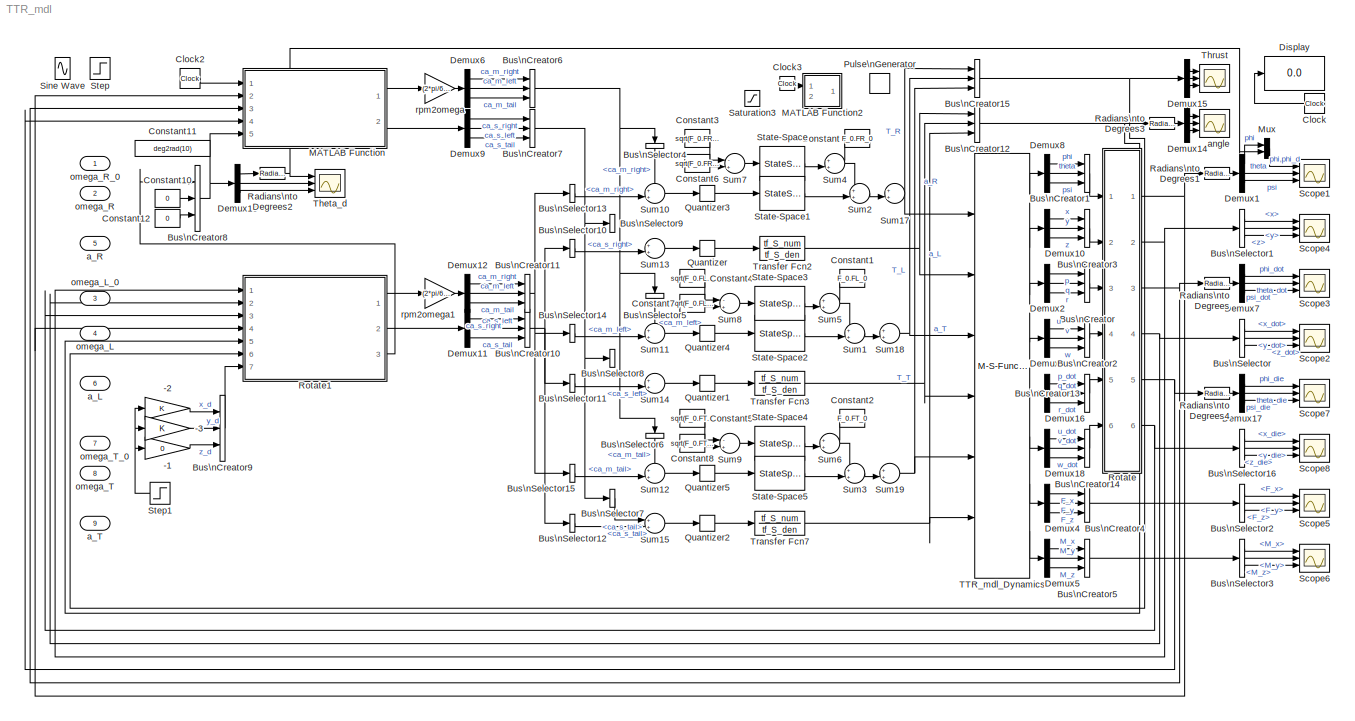
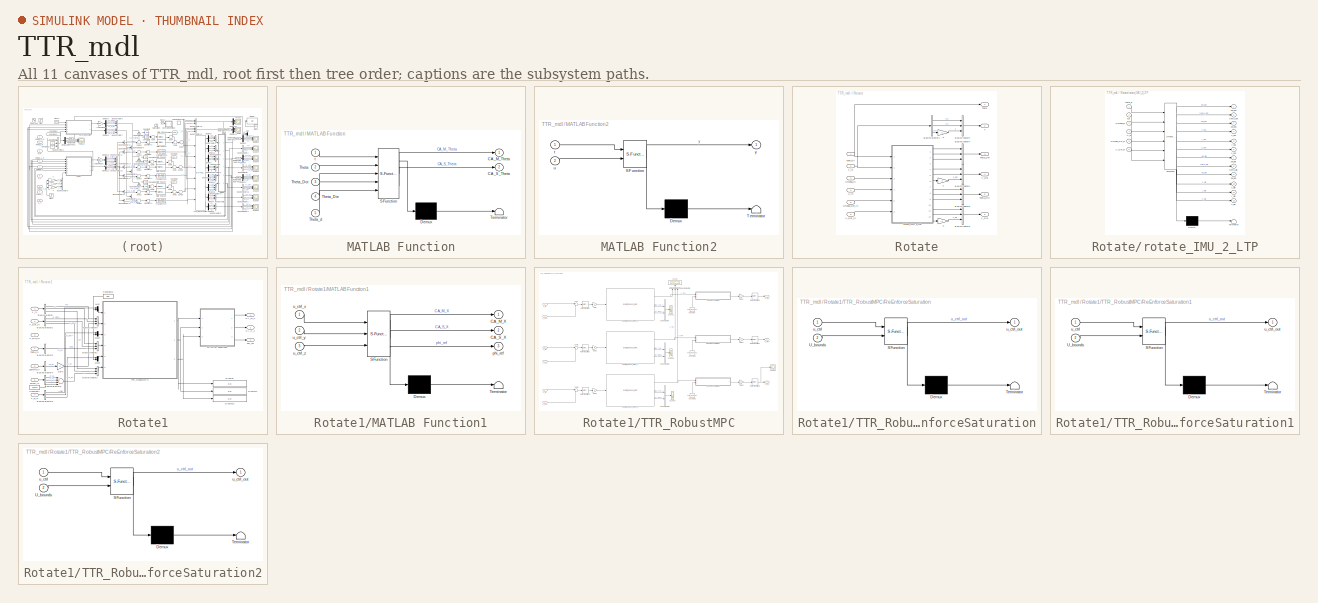
[diagram: thumbnail index - all 11 canvases of the model, root first then tree order]
MODEL TTR_mdl
KIND model
CONFIG InitFcn = TTR_mdl_Initialization;
WORKSPACE source: external: MAT-File  (data not in archive)
BLOCK [Gain] -1
  Gain = 0
  OutDataTypeStr = Inherit: Inherit via internal rule
  ParamDataTypeStr = Inherit: Inherit via internal rule
  SID = 1244
  SaturateOnIntegerOverflow = off
BLOCK [Gain] -2
  OutDataTypeStr = Inherit: Inherit via internal rule
  ParamDataTypeStr = Inherit: Inherit via internal rule
  SID = 1299
  SaturateOnIntegerOverflow = off
BLOCK [Gain] -3
  OutDataTypeStr = Inherit: Inherit via internal rule
  ParamDataTypeStr = Inherit: Inherit via internal rule
  SID = 1300
  SaturateOnIntegerOverflow = off
BLOCK [BusCreator] Bus\nCreator
  DisplayOption = bar
  Inputs = 3
  Ports = [3, 1]
  SID = 1094
BLOCK [BusCreator] Bus\nCreator1
  DisplayOption = bar
  Inputs = 3
  Ports = [3, 1]
  SID = 1096
BLOCK [BusCreator] Bus\nCreator10
  DisplayOption = bar
  Inputs = 3
  Ports = [3, 1]
  SID = 1151
BLOCK [BusCreator] Bus\nCreator11
  DisplayOption = bar
  Inputs = 3
  Ports = [3, 1]
  SID = 1153
BLOCK [BusCreator] Bus\nCreator12
  DisplayOption = bar
  Inputs = 3
  Ports = [3, 1]
  SID = 1208
BLOCK [BusCreator] Bus\nCreator13
  DisplayOption = bar
  Inputs = 3
  Ports = [3, 1]
  SID = 1226
BLOCK [BusCreator] Bus\nCreator14
  DisplayOption = bar
  Inputs = 3
  Ports = [3, 1]
  SID = 1231
BLOCK [BusCreator] Bus\nCreator15
  DisplayOption = bar
  Inputs = 3
  Ports = [3, 1]
  SID = 1410
BLOCK [BusCreator] Bus\nCreator2
  DisplayOption = bar
  Inputs = 3
  Ports = [3, 1]
  SID = 1098
BLOCK [BusCreator] Bus\nCreator3
  DisplayOption = bar
  Inputs = 3
  Ports = [3, 1]
  SID = 1101
BLOCK [BusCreator] Bus\nCreator4
  DisplayOption = bar
  Inputs = 3
  Ports = [3, 1]
  SID = 1105
BLOCK [BusCreator] Bus\nCreator5
  DisplayOption = bar
  Inputs = 3
  Ports = [3, 1]
  SID = 1108
BLOCK [BusCreator] Bus\nCreator6
  DisplayOption = bar
  Inputs = 3
  Ports = [3, 1]
  SID = 1112
BLOCK [BusCreator] Bus\nCreator7
  DisplayOption = bar
  Inputs = 3
  Ports = [3, 1]
  SID = 1122
BLOCK [BusCreator] Bus\nCreator8
  DisplayOption = bar
  Inputs = 3
  Ports = [3, 1]
  SID = 1139
BLOCK [BusCreator] Bus\nCreator9
  DisplayOption = bar
  Inputs = 3
  Ports = [3, 1]
  SID = 1147
BLOCK [BusSelector] Bus\nSelector
  OutputSignals = x_dot,y_dot,z_dot
  Ports = [1, 3]
  SID = 1103
BLOCK [BusSelector] Bus\nSelector1
  OutputSignals = x,y,z
  Ports = [1, 3]
  SID = 1104
BLOCK [BusSelector] Bus\nSelector10
  OutputSignals = ca_s_right
  Ports = [1, 1]
  SID = 1155
BLOCK [BusSelector] Bus\nSelector11
  OutputSignals = ca_s_left
  Ports = [1, 1]
  SID = 1156
BLOCK [BusSelector] Bus\nSelector12
  OutputSignals = ca_s_tail
  Ports = [1, 1]
  SID = 1158
BLOCK [BusSelector] Bus\nSelector13
  OutputSignals = ca_m_right
  Ports = [1, 1]
  SID = 1169
BLOCK [BusSelector] Bus\nSelector14
  OutputSignals = ca_m_left
  Ports = [1, 1]
  SID = 1171
BLOCK [BusSelector] Bus\nSelector15
  OutputSignals = ca_m_tail
  Ports = [1, 1]
  SID = 1172
BLOCK [BusSelector] Bus\nSelector16
  OutputSignals = x_die,y_die,z_die
  Ports = [1, 3]
  SID = 1232
BLOCK [BusSelector] Bus\nSelector2
  OutputSignals = F_x,F_y,F_z
  Ports = [1, 3]
  SID = 1107
BLOCK [BusSelector] Bus\nSelector3
  OutputSignals = M_x,M_y,M_z
  Ports = [1, 3]
  SID = 1110
BLOCK [BusSelector] Bus\nSelector4
  OutputSignals = ca_m_right
  Ports = [1, 1]
  SID = 1124
BLOCK [BusSelector] Bus\nSelector5
  OutputSignals = ca_m_left
  Ports = [1, 1]
  SID = 1125
BLOCK [BusSelector] Bus\nSelector6
  OutputSignals = ca_m_tail
  Ports = [1, 1]
  SID = 1127
BLOCK [BusSelector] Bus\nSelector7
  OutputSignals = ca_s_tail
  Ports = [1, 1]
  SID = 1131
BLOCK [BusSelector] Bus\nSelector8
  OutputSignals = ca_s_left
  Ports = [1, 1]
  SID = 1132
BLOCK [BusSelector] Bus\nSelector9
  OutputSignals = ca_s_right
  Ports = [1, 1]
  SID = 1133
BLOCK [Clock] Clock
  SID = 1027
BLOCK [Clock] Clock2
  SID = 1164
BLOCK [Clock] Clock3
  SID = 1187
BLOCK [Constant] Constant
  SID = 1076
  Value = F_0.FR_0
BLOCK [Constant] Constant1
  SID = 1079
  Value = F_0.FL_0
BLOCK [Constant] Constant10
  SID = 1200
  Value = 0
BLOCK [Constant] Constant11
  SID = 1222
  Value = deg2rad(10)
BLOCK [Constant] Constant12
  SID = 1138
  Value = 0
BLOCK [Constant] Constant2
  SID = 1081
  Value = F_0.FT_0
BLOCK [Constant] Constant3
  SID = 1084
  Value = sqrt(F_0.FR_0/Rotor_Properties.C_T_RL_trim)
BLOCK [Constant] Constant4
  SID = 1085
  Value = sqrt(F_0.FL_0/Rotor_Properties.C_T_RL_trim)
BLOCK [Constant] Constant5
  SID = 1087
  Value = sqrt(F_0.FT_0/Rotor_Properties.C_T_T_trim)
BLOCK [Constant] Constant6
  SID = 1089
  Value = sqrt(F_0.FR_0/Rotor_Properties.C_T_RL_trim)
BLOCK [Constant] Constant7
  SID = 1090
  Value = sqrt(F_0.FL_0/Rotor_Properties.C_T_RL_trim)
BLOCK [Constant] Constant8
  SID = 1092
  Value = sqrt(F_0.FT_0/Rotor_Properties.C_T_T_trim)
BLOCK [Demux] Demux1
  DisplayOption = bar
  Outputs = 3
  Ports = [1, 3]
  SID = 1037
BLOCK [Demux] Demux10
  DisplayOption = bar
  Outputs = 3
  Ports = [1, 3]
  SID = 1102
BLOCK [Demux] Demux11
  DisplayOption = bar
  Outputs = 3
  Ports = [1, 3]
  SID = 1152
BLOCK [Demux] Demux12
  DisplayOption = bar
  Outputs = 3
  Ports = [1, 3]
  SID = 1154
BLOCK [Demux] Demux13
  DisplayOption = bar
  Outputs = 3
  Ports = [1, 3]
  SID = 1206
BLOCK [Demux] Demux14
  DisplayOption = bar
  Outputs = 3
  Ports = [1, 3]
  SID = 1210
BLOCK [Demux] Demux15
  DisplayOption = bar
  Outputs = 3
  Ports = [1, 3]
  SID = 1411
BLOCK [Demux] Demux16
  DisplayOption = bar
  Outputs = 3
  Ports = [1, 3]
  SID = 1227
BLOCK [Demux] Demux17
  DisplayOption = bar
  Outputs = 3
  Ports = [1, 3]
  SID = 1228
BLOCK [Demux] Demux18
  DisplayOption = bar
  Outputs = 3
  Ports = [1, 3]
  SID = 1233
BLOCK [Demux] Demux2
  DisplayOption = bar
  Outputs = 3
  Ports = [1, 3]
  SID = 1032
BLOCK [Demux] Demux3
  DisplayOption = bar
  Outputs = 3
  Ports = [1, 3]
  SID = 1099
BLOCK [Demux] Demux4
  DisplayOption = bar
  Outputs = 3
  Ports = [1, 3]
  SID = 1106
BLOCK [Demux] Demux5
  DisplayOption = bar
  Outputs = 3
  Ports = [1, 3]
  SID = 1109
BLOCK [Demux] Demux6
  DisplayOption = bar
  Outputs = 3
  Ports = [1, 3]
  SID = 1113
BLOCK [Demux] Demux7
  DisplayOption = bar
  Outputs = 3
  Ports = [1, 3]
  SID = 1095
BLOCK [Demux] Demux8
  DisplayOption = bar
  Outputs = 3
  Ports = [1, 3]
  SID = 1097
BLOCK [Demux] Demux9
  DisplayOption = bar
  Outputs = 3
  Ports = [1, 3]
  SID = 1123
BLOCK [Display] Display
  Decimation = 1
  Lockdown = off
  Ports = [1]
  SID = 1028
BLOCK [SubSystem] MATLAB Function
  ErrorFcn = Stateflow.Translate.translate
  FunctionWithSeparateData = off
  MaskHideContents = off
  MinAlgLoopOccurrences = off
  Opaque = off
  PermitHierarchicalResolution = ExplicitOnly
  Ports = [5, 2]
  PropExecContextOutsideSubsystem = off
  RTWSystemCode = Auto
  RequestExecContextInheritance = off
  SFBlockType = MATLAB Function
  SID = 1093
  TreatAsAtomicUnit = on
BLOCK [Demux] MATLAB Function/ Demux 
  Outputs = 1
  Ports = [1, 1]
  SID = 1093::35
BLOCK [S-Function] MATLAB Function/ SFunction 
  EnableBusSupport = on
  FunctionName = sf_sfun
  Parameters = LQR_phi,PolyGT_U2A,PolyRL_U2R,PolyT_U2R
  PortCounts = [5 3]
  Ports = [5, 3]
  SID = 1093::34
  Tag = Stateflow S-Function TTR_mdl 2
BLOCK [Terminator] MATLAB Function/ Terminator 
  SID = 1093::36
BLOCK [Outport] MATLAB Function/CA_M_Theta
  IconDisplay = Port number
  SID = 1093::5
BLOCK [Outport] MATLAB Function/CA_S_Theta
  IconDisplay = Port number
  Port = 2
  SID = 1093::29
BLOCK [Inport] MATLAB Function/Theta
  IconDisplay = Port number
  Port = 2
  SID = 1093::23
BLOCK [Inport] MATLAB Function/Theta_Die
  IconDisplay = Port number
  Port = 4
  SID = 1093::32
BLOCK [Inport] MATLAB Function/Theta_Dot
  IconDisplay = Port number
  Port = 3
  SID = 1093::1
BLOCK [Inport] MATLAB Function/Theta_d
  IconDisplay = Port number
  Port = 5
  SID = 1093::24
BLOCK [Inport] MATLAB Function/t
  IconDisplay = Port number
  SID = 1093::31
BLOCK [SubSystem] MATLAB Function2
  ErrorFcn = Stateflow.Translate.translate
  FunctionWithSeparateData = off
  MaskHideContents = off
  MinAlgLoopOccurrences = off
  Opaque = off
  PermitHierarchicalResolution = ExplicitOnly
  Ports = [2, 1]
  PropExecContextOutsideSubsystem = off
  RTWSystemCode = Auto
  RequestExecContextInheritance = off
  SFBlockType = MATLAB Function
  SID = 1186
  TreatAsAtomicUnit = on
BLOCK [Demux] MATLAB Function2/ Demux 
  Outputs = 1
  Ports = [1, 1]
  SID = 1186::39
BLOCK [S-Function] MATLAB Function2/ SFunction 
  EnableBusSupport = on
  FunctionName = sf_sfun
  PortCounts = [2 2]
  Ports = [2, 2]
  SID = 1186::38
  Tag = Stateflow S-Function TTR_mdl 3
BLOCK [Terminator] MATLAB Function2/ Terminator 
  SID = 1186::40
BLOCK [Inport] MATLAB Function2/t
  IconDisplay = Port number
  SID = 1186::32
BLOCK [Inport] MATLAB Function2/u
  IconDisplay = Port number
  Port = 2
  SID = 1186::1
BLOCK [Outport] MATLAB Function2/y
  IconDisplay = Port number
  SID = 1186::37
BLOCK [Mux] Mux
  DisplayOption = bar
  Inputs = 2
  Ports = [2, 1]
  SID = 1254
BLOCK [DiscretePulseGenerator] Pulse\nGenerator
  Amplitude = 0.1
  Period = 10
  Ports = [0, 1]
  PulseType = Time based
  PulseWidth = 50
  SID = 1248
BLOCK [Quantizer] Quantizer
  QuantizationInterval = deg2rad(0.5)
  SID = 1249
BLOCK [Quantizer] Quantizer1
  QuantizationInterval = deg2rad(0.5)
  SID = 1250
BLOCK [Quantizer] Quantizer2
  QuantizationInterval = deg2rad(0.5)
  SID = 1251
BLOCK [Quantizer] Quantizer3
  QuantizationInterval = (1/(2*pi/60))*(1/PolyRL_U2R(1))
  SID = 1287
BLOCK [Quantizer] Quantizer4
  QuantizationInterval = (1/(2*pi/60))*(1/PolyRL_U2R(1))
  SID = 1288
BLOCK [Quantizer] Quantizer5
  QuantizationInterval = (1/(2*pi/60))*(1/PolyT_U2R(1))
  SID = 1289
BLOCK [Reference] Radians\nto Degrees  REF=simulink_extras/Transformations/Radians\nto Degrees
  Ports = [1, 1]
  SID = 998
  SourceBlock = simulink_extras/Transformations/Radians\nto Degrees
  SourceType = RadiansToDegrees
BLOCK [Reference] Radians\nto Degrees1  REF=simulink_extras/Transformations/Radians\nto Degrees
  Ports = [1, 1]
  SID = 1038
  SourceBlock = simulink_extras/Transformations/Radians\nto Degrees
  SourceType = RadiansToDegrees
BLOCK [Reference] Radians\nto Degrees2  REF=simulink_extras/Transformations/Radians\nto Degrees
  Ports = [1, 1]
  SID = 1217
  SourceBlock = simulink_extras/Transformations/Radians\nto Degrees
  SourceType = RadiansToDegrees
BLOCK [Reference] Radians\nto Degrees3  REF=simulink_extras/Transformations/Radians\nto Degrees
  Ports = [1, 1]
  SID = 1221
  SourceBlock = simulink_extras/Transformations/Radians\nto Degrees
  SourceType = RadiansToDegrees
BLOCK [Reference] Radians\nto Degrees4  REF=simulink_extras/Transformations/Radians\nto Degrees
  Ports = [1, 1]
  SID = 1229
  SourceBlock = simulink_extras/Transformations/Radians\nto Degrees
  SourceType = RadiansToDegrees
BLOCK [SubSystem] Rotate
  FunctionWithSeparateData = off
  MaskHideContents = off
  MinAlgLoopOccurrences = off
  Opaque = off
  Ports = [6, 6]
  PropExecContextOutsideSubsystem = off
  RTWSystemCode = Auto
  RequestExecContextInheritance = off
  SID = 1258
BLOCK [Gain] Rotate/-1
  Gain = -1
  OutDataTypeStr = Inherit: Inherit via internal rule
  ParamDataTypeStr = Inherit: Inherit via internal rule
  SID = 1314
  SaturateOnIntegerOverflow = off
BLOCK [Gain] Rotate/-2
  Gain = -1
  OutDataTypeStr = Inherit: Inherit via internal rule
  ParamDataTypeStr = Inherit: Inherit via internal rule
  SID = 1315
  SaturateOnIntegerOverflow = off
BLOCK [Gain] Rotate/-3
  Gain = -1
  OutDataTypeStr = Inherit: Inherit via internal rule
  ParamDataTypeStr = Inherit: Inherit via internal rule
  SID = 1318
  SaturateOnIntegerOverflow = off
BLOCK [BusCreator] Rotate/Bus\nCreator1
  DisplayOption = bar
  Inputs = 3
  Ports = [3, 1]
  SID = 1282
BLOCK [BusCreator] Rotate/Bus\nCreator2
  DisplayOption = bar
  Inputs = 3
  Ports = [3, 1]
  SID = 1283
BLOCK [BusCreator] Rotate/Bus\nCreator3
  DisplayOption = bar
  Inputs = 3
  Ports = [3, 1]
  SID = 1284
BLOCK [BusCreator] Rotate/Bus\nCreator4
  DisplayOption = bar
  Inputs = 3
  Ports = [3, 1]
  SID = 1317
BLOCK [BusCreator] Rotate/Bus\nCreator7
  DisplayOption = bar
  Inputs = 3
  Ports = [3, 1]
  SID = 1281
BLOCK [BusSelector] Rotate/Bus\nSelector1
  OutputSignals = x,y,z
  Ports = [1, 3]
  SID = 1316
BLOCK [Inport] Rotate/Omega_Dot_in
  IconDisplay = Port number
  Port = 5
  SID = 1272
BLOCK [Inport] Rotate/Omega_in
  IconDisplay = Port number
  Port = 3
  SID = 1270
BLOCK [Outport] Rotate/Theta
  IconDisplay = Port number
  SID = 1268
BLOCK [Outport] Rotate/Theta_Die
  IconDisplay = Port number
  Port = 5
  SID = 1278
BLOCK [Outport] Rotate/Theta_Dot
  IconDisplay = Port number
  Port = 3
  SID = 1276
BLOCK [Inport] Rotate/Theta_in
  IconDisplay = Port number
  SID = 1259
BLOCK [Inport] Rotate/U_Dot_in
  IconDisplay = Port number
  Port = 6
  SID = 1273
BLOCK [Inport] Rotate/U_in
  IconDisplay = Port number
  Port = 4
  SID = 1271
BLOCK [Outport] Rotate/X
  IconDisplay = Port number
  Port = 2
  SID = 1275
BLOCK [Outport] Rotate/X_Die
  IconDisplay = Port number
  Port = 6
  SID = 1279
BLOCK [Outport] Rotate/X_Dot
  IconDisplay = Port number
  Port = 4
  SID = 1277
BLOCK [Inport] Rotate/X_in
  IconDisplay = Port number
  Port = 2
  SID = 1269
BLOCK [SubSystem] Rotate/rotate_IMU_2_LTP
  ErrorFcn = Stateflow.Translate.translate
  FunctionWithSeparateData = off
  MaskHideContents = off
  MinAlgLoopOccurrences = off
  Opaque = off
  PermitHierarchicalResolution = ExplicitOnly
  Ports = [6, 12]
  PropExecContextOutsideSubsystem = off
  RTWSystemCode = Auto
  RequestExecContextInheritance = off
  SFBlockType = MATLAB Function
  SID = 1267
  TreatAsAtomicUnit = on
BLOCK [Demux] Rotate/rotate_IMU_2_LTP/ Demux 
  Outputs = 1
  Ports = [1, 1]
  SID = 1267::60
BLOCK [S-Function] Rotate/rotate_IMU_2_LTP/ SFunction 
  EnableBusSupport = on
  FunctionName = sf_sfun
  PortCounts = [6 13]
  Ports = [6, 13]
  SID = 1267::59
  Tag = Stateflow S-Function TTR_mdl 41
BLOCK [Terminator] Rotate/rotate_IMU_2_LTP/ Terminator 
  SID = 1267::61
BLOCK [Inport] Rotate/rotate_IMU_2_LTP/Omega_Dot_in
  IconDisplay = Port number
  Port = 5
  SID = 1267::51
BLOCK [Inport] Rotate/rotate_IMU_2_LTP/Omega_in
  IconDisplay = Port number
  Port = 3
  SID = 1267::49
BLOCK [Inport] Rotate/rotate_IMU_2_LTP/Theta_in
  IconDisplay = Port number
  SID = 1267::18
BLOCK [Inport] Rotate/rotate_IMU_2_LTP/U_Dot_in
  IconDisplay = Port number
  Port = 6
  SID = 1267::52
BLOCK [Inport] Rotate/rotate_IMU_2_LTP/U_in
  IconDisplay = Port number
  Port = 4
  SID = 1267::50
BLOCK [Inport] Rotate/rotate_IMU_2_LTP/X_in
  IconDisplay = Port number
  Port = 2
  SID = 1267::48
BLOCK [Outport] Rotate/rotate_IMU_2_LTP/phi_die
  IconDisplay = Port number
  Port = 7
  SID = 1267::56
BLOCK [Outport] Rotate/rotate_IMU_2_LTP/phi_dot
  IconDisplay = Port number
  SID = 1267::53
BLOCK [Outport] Rotate/rotate_IMU_2_LTP/psi_die
  IconDisplay = Port number
  Port = 9
  SID = 1267::58
BLOCK [Outport] Rotate/rotate_IMU_2_LTP/psi_dot
  IconDisplay = Port number
  Port = 3
  SID = 1267::55
BLOCK [Outport] Rotate/rotate_IMU_2_LTP/theta_die
  IconDisplay = Port number
  Port = 8
  SID = 1267::57
BLOCK [Outport] Rotate/rotate_IMU_2_LTP/theta_dot
  IconDisplay = Port number
  Port = 2
  SID = 1267::54
BLOCK [Outport] Rotate/rotate_IMU_2_LTP/x_die
  IconDisplay = Port number
  Port = 10
  SID = 1267::33
BLOCK [Outport] Rotate/rotate_IMU_2_LTP/x_dot
  IconDisplay = Port number
  Port = 4
  SID = 1267::5
BLOCK [Outport] Rotate/rotate_IMU_2_LTP/y_die
  IconDisplay = Port number
  Port = 11
  SID = 1267::34
BLOCK [Outport] Rotate/rotate_IMU_2_LTP/y_dot
  IconDisplay = Port number
  Port = 5
  SID = 1267::31
BLOCK [Outport] Rotate/rotate_IMU_2_LTP/z_die
  IconDisplay = Port number
  Port = 12
  SID = 1267::35
BLOCK [Outport] Rotate/rotate_IMU_2_LTP/z_dot
  IconDisplay = Port number
  Port = 6
  SID = 1267::32
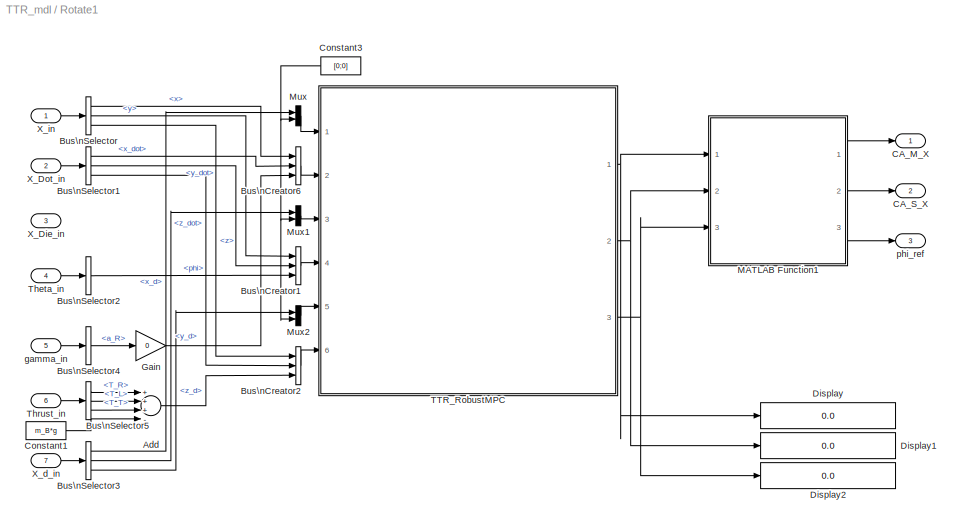
BLOCK [SubSystem] Rotate1
  FunctionWithSeparateData = off
  MaskHideContents = off
  MinAlgLoopOccurrences = off
  Opaque = off
  Ports = [7, 3]
  PropExecContextOutsideSubsystem = off
  RTWSystemCode = Auto
  RequestExecContextInheritance = off
  SID = 1328
BLOCK [Sum] Rotate1/Add
  InputSameDT = off
  Inputs = +++-
  OutDataTypeStr = Inherit: Inherit via internal rule
  Ports = [4, 1]
  SID = 1415
  SaturateOnIntegerOverflow = off
BLOCK [BusCreator] Rotate1/Bus\nCreator1
  DisplayOption = bar
  Inputs = 3
  Ports = [3, 1]
  SID = 1400
BLOCK [BusCreator] Rotate1/Bus\nCreator2
  DisplayOption = bar
  Inputs = 3
  Ports = [3, 1]
  SID = 1401
BLOCK [BusCreator] Rotate1/Bus\nCreator6
  DisplayOption = bar
  Inputs = 3
  Ports = [3, 1]
  SID = 1399
BLOCK [BusSelector] Rotate1/Bus\nSelector
  OutputSignals = x,y,z
  Ports = [1, 3]
  SID = 1393
BLOCK [BusSelector] Rotate1/Bus\nSelector1
  OutputSignals = x_dot,y_dot,z_dot
  Ports = [1, 3]
  SID = 1397
BLOCK [BusSelector] Rotate1/Bus\nSelector2
  OutputSignals = phi
  Ports = [1, 1]
  SID = 1398
BLOCK [BusSelector] Rotate1/Bus\nSelector3
  OutputSignals = x_d,y_d,z_d
  Ports = [1, 3]
  SID = 1409
BLOCK [BusSelector] Rotate1/Bus\nSelector4
  OutputSignals = a_R
  Ports = [1, 1]
  SID = 1413
BLOCK [BusSelector] Rotate1/Bus\nSelector5
  OutputSignals = T_R,T_L,T_T
  Ports = [1, 3]
  SID = 1414
BLOCK [Outport] Rotate1/CA_M_X
  IconDisplay = Port number
  SID = 1345
BLOCK [Outport] Rotate1/CA_S_X
  IconDisplay = Port number
  Port = 2
  SID = 1402
BLOCK [Constant] Rotate1/Constant1
  SID = 1416
  Value = m_B*g
BLOCK [Constant] Rotate1/Constant3
  SID = 1407
  Value = [0;0]
BLOCK [Display] Rotate1/Display
  Decimation = 1
  Lockdown = off
  Ports = [1]
  SID = 1358
BLOCK [Display] Rotate1/Display1
  Decimation = 1
  Lockdown = off
  Ports = [1]
  SID = 1359
BLOCK [Display] Rotate1/Display2
  Decimation = 1
  Lockdown = off
  Ports = [1]
  SID = 1360
BLOCK [Gain] Rotate1/Gain
  Gain = 0
  OutDataTypeStr = Inherit: Inherit via internal rule
  ParamDataTypeStr = Inherit: Inherit via internal rule
  SID = 1429
  SaturateOnIntegerOverflow = off
BLOCK [SubSystem] Rotate1/MATLAB Function1
  ErrorFcn = Stateflow.Translate.translate
  FunctionWithSeparateData = off
  MaskHideContents = off
  MinAlgLoopOccurrences = off
  Opaque = off
  PermitHierarchicalResolution = ExplicitOnly
  Ports = [3, 3]
  PropExecContextOutsideSubsystem = off
  RTWSystemCode = Auto
  RequestExecContextInheritance = off
  SFBlockType = MATLAB Function
  SID = 1146
  TreatAsAtomicUnit = on
BLOCK [Demux] Rotate1/MATLAB Function1/ Demux 
  Outputs = 1
  Ports = [1, 1]
  SID = 1146::91
BLOCK [S-Function] Rotate1/MATLAB Function1/ SFunction 
  EnableBusSupport = on
  FunctionName = sf_sfun
  Parameters = PolyRL_U2R,PolyT_U2R,TTR_mdl_Properties_arr,Ts_slow
  PortCounts = [3 4]
  Ports = [3, 4]
  SID = 1146::90
  Tag = Stateflow S-Function TTR_mdl 1
BLOCK [Terminator] Rotate1/MATLAB Function1/ Terminator 
  SID = 1146::92
BLOCK [Outport] Rotate1/MATLAB Function1/CA_M_X
  IconDisplay = Port number
  SID = 1146::5
BLOCK [Outport] Rotate1/MATLAB Function1/CA_S_X
  IconDisplay = Port number
  Port = 2
  SID = 1146::29
BLOCK [Outport] Rotate1/MATLAB Function1/phi_ref
  IconDisplay = Port number
  Port = 3
  SID = 1146::85
BLOCK [Inport] Rotate1/MATLAB Function1/u_ctrl_x
  IconDisplay = Port number
  SID = 1146::83
BLOCK [Inport] Rotate1/MATLAB Function1/u_ctrl_y
  IconDisplay = Port number
  Port = 2
  SID = 1146::84
BLOCK [Inport] Rotate1/MATLAB Function1/u_ctrl_z
  IconDisplay = Port number
  Port = 3
  SID = 1146::23
BLOCK [Mux] Rotate1/Mux
  DisplayOption = bar
  Inputs = 2
  Ports = [2, 1]
  SID = 1404
BLOCK [Mux] Rotate1/Mux1
  DisplayOption = bar
  Inputs = 2
  Ports = [2, 1]
  SID = 1405
BLOCK [Mux] Rotate1/Mux2
  DisplayOption = bar
  Inputs = 2
  Ports = [2, 1]
  SID = 1406
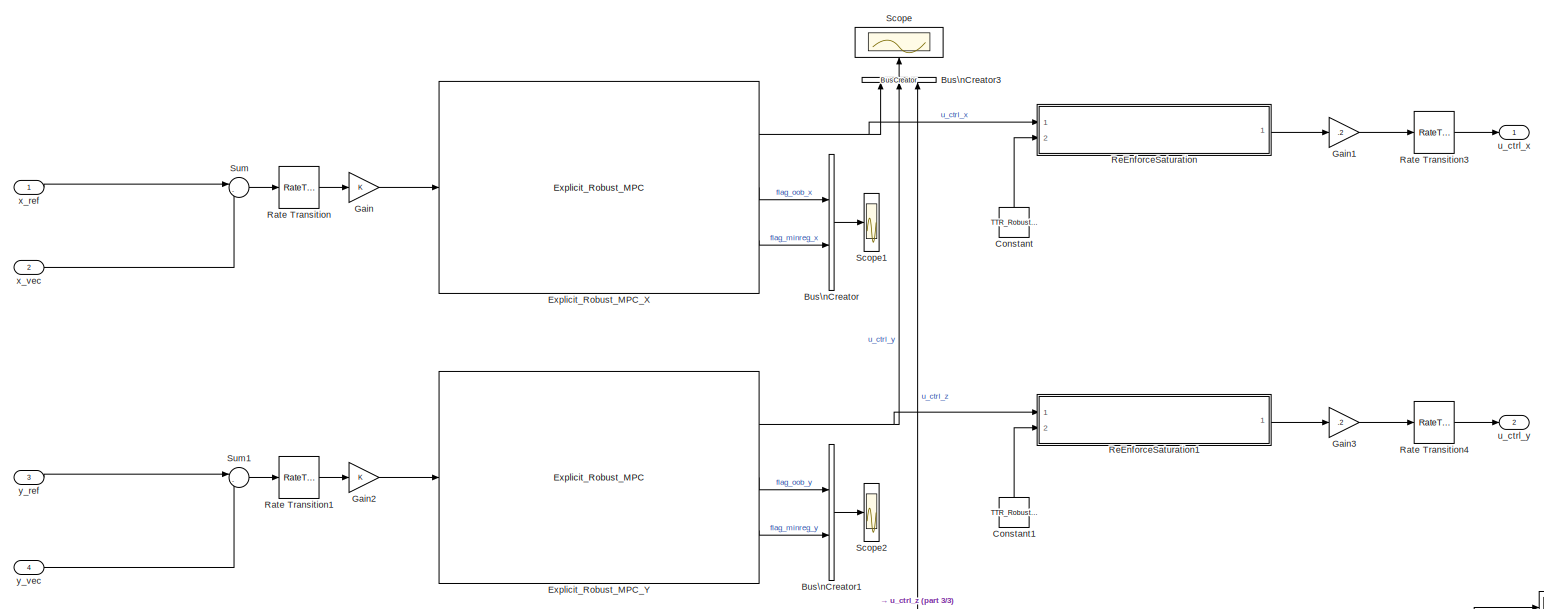
[diagram: Rotate1/TTR_RobustMPC - part 1/3, full width, middle band]
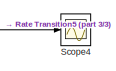
[diagram: Rotate1/TTR_RobustMPC - part 2/3, bottom right region]
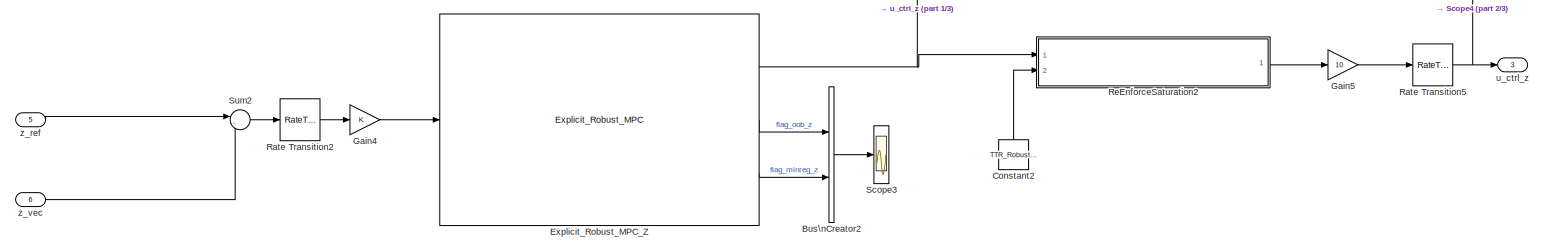
[diagram: Rotate1/TTR_RobustMPC - part 3/3, full width, bottom band]
BLOCK [SubSystem] Rotate1/TTR_RobustMPC
  FunctionWithSeparateData = off
  MaskHideContents = off
  MinAlgLoopOccurrences = off
  Opaque = off
  Ports = [6, 3]
  PropExecContextOutsideSubsystem = off
  RTWSystemCode = Auto
  RequestExecContextInheritance = off
  SID = 1361
BLOCK [BusCreator] Rotate1/TTR_RobustMPC/Bus\nCreator
  DisplayOption = bar
  Inputs = 2
  Ports = [2, 1]
  SID = 1368
BLOCK [BusCreator] Rotate1/TTR_RobustMPC/Bus\nCreator1
  DisplayOption = bar
  Inputs = 2
  Ports = [2, 1]
  SID = 1369
BLOCK [BusCreator] Rotate1/TTR_RobustMPC/Bus\nCreator2
  DisplayOption = bar
  Inputs = 2
  Ports = [2, 1]
  SID = 1370
BLOCK [BusCreator] Rotate1/TTR_RobustMPC/Bus\nCreator3
  DisplayOption = bar
  Inputs = 3
  Ports = [3, 1]
  SID = 1371
BLOCK [Constant] Rotate1/TTR_RobustMPC/Constant
  SID = 1372
  Value = TTR_RobustMPC.Xdir.U_bounds
BLOCK [Constant] Rotate1/TTR_RobustMPC/Constant1
  SID = 1373
  Value = TTR_RobustMPC.Ydir.U_bounds
BLOCK [Constant] Rotate1/TTR_RobustMPC/Constant2
  SID = 1374
  Value = TTR_RobustMPC.Zdir.U_bounds
BLOCK [Reference] Rotate1/TTR_RobustMPC/Explicit_Robust_MPC_X  REF=Robust_MPC_Library/Explicit_Robust_MPC
  F = TTR_RobustMPC.Xdir.F
  G = TTR_RobustMPC.Xdir.G
  H = TTR_RobustMPC.Xdir.H
  Hi_init = zeros(100,TTR_RobustMPC.Xdir.Nx)
  K = TTR_RobustMPC.Xdir.K
  Ki_init = zeros(100,TTR_RobustMPC.Xdir.Nu)
  Nc = TTR_RobustMPC.Xdir.Nc
  Nx = TTR_RobustMPC.Xdir.Nx
  Ports = [1, 3]
  SID = 1375
  SourceBlock = Robust_MPC_Library/Explicit_Robust_MPC
BLOCK [Reference] Rotate1/TTR_RobustMPC/Explicit_Robust_MPC_Y  REF=Robust_MPC_Library/Explicit_Robust_MPC
  F = TTR_RobustMPC.Ydir.F
  G = TTR_RobustMPC.Ydir.G
  H = TTR_RobustMPC.Ydir.H
  Hi_init = zeros(100,TTR_RobustMPC.Ydir.Nx)
  K = TTR_RobustMPC.Ydir.K
  Ki_init = zeros(100,TTR_RobustMPC.Ydir.Nu)
  Nc = TTR_RobustMPC.Ydir.Nc
  Nx = TTR_RobustMPC.Ydir.Nx
  Ports = [1, 3]
  SID = 1376
  SourceBlock = Robust_MPC_Library/Explicit_Robust_MPC
BLOCK [Reference] Rotate1/TTR_RobustMPC/Explicit_Robust_MPC_Z  REF=Robust_MPC_Library/Explicit_Robust_MPC
  F = TTR_RobustMPC.Zdir.F
  G = TTR_RobustMPC.Zdir.G
  H = TTR_RobustMPC.Zdir.H
  Hi_init = zeros(100,TTR_RobustMPC.Zdir.Nx)
  K = TTR_RobustMPC.Zdir.K
  Ki_init = zeros(100,TTR_RobustMPC.Zdir.Nu)
  Nc = TTR_RobustMPC.Zdir.Nc
  Nx = TTR_RobustMPC.Zdir.Nx
  Ports = [1, 3]
  SID = 1377
  SourceBlock = Robust_MPC_Library/Explicit_Robust_MPC
BLOCK [Gain] Rotate1/TTR_RobustMPC/Gain
  OutDataTypeStr = Inherit: Inherit via internal rule
  ParamDataTypeStr = Inherit: Inherit via internal rule
  SID = 1417
  SampleTime = TTR_RobustMPC.Xdir.Ts
  SaturateOnIntegerOverflow = off
BLOCK [Gain] Rotate1/TTR_RobustMPC/Gain1
  Gain = .2
  OutDataTypeStr = Inherit: Inherit via internal rule
  ParamDataTypeStr = Inherit: Inherit via internal rule
  SID = 1418
  SampleTime = TTR_RobustMPC.Xdir.Ts
  SaturateOnIntegerOverflow = off
BLOCK [Gain] Rotate1/TTR_RobustMPC/Gain2
  OutDataTypeStr = Inherit: Inherit via internal rule
  ParamDataTypeStr = Inherit: Inherit via internal rule
  SID = 1419
  SampleTime = TTR_RobustMPC.Ydir.Ts
  SaturateOnIntegerOverflow = off
BLOCK [Gain] Rotate1/TTR_RobustMPC/Gain3
  Gain = .2
  OutDataTypeStr = Inherit: Inherit via internal rule
  ParamDataTypeStr = Inherit: Inherit via internal rule
  SID = 1420
  SampleTime = TTR_RobustMPC.Ydir.Ts
  SaturateOnIntegerOverflow = off
BLOCK [Gain] Rotate1/TTR_RobustMPC/Gain4
  OutDataTypeStr = Inherit: Inherit via internal rule
  ParamDataTypeStr = Inherit: Inherit via internal rule
  SID = 1421
  SampleTime = TTR_RobustMPC.Zdir.Ts
  SaturateOnIntegerOverflow = off
BLOCK [Gain] Rotate1/TTR_RobustMPC/Gain5
  Gain = 10
  OutDataTypeStr = Inherit: Inherit via internal rule
  ParamDataTypeStr = Inherit: Inherit via internal rule
  SID = 1422
  SampleTime = TTR_RobustMPC.Zdir.Ts
  SaturateOnIntegerOverflow = off
BLOCK [RateTransition] Rotate1/TTR_RobustMPC/Rate Transition
  SID = 1423
BLOCK [RateTransition] Rotate1/TTR_RobustMPC/Rate Transition1
  SID = 1424
BLOCK [RateTransition] Rotate1/TTR_RobustMPC/Rate Transition2
  SID = 1425
BLOCK [RateTransition] Rotate1/TTR_RobustMPC/Rate Transition3
  SID = 1426
BLOCK [RateTransition] Rotate1/TTR_RobustMPC/Rate Transition4
  SID = 1427
BLOCK [RateTransition] Rotate1/TTR_RobustMPC/Rate Transition5
  SID = 1428
BLOCK [SubSystem] Rotate1/TTR_RobustMPC/ReEnforceSaturation
  ErrorFcn = Stateflow.Translate.translate
  FunctionWithSeparateData = off
  MaskHideContents = off
  MinAlgLoopOccurrences = off
  Opaque = off
  PermitHierarchicalResolution = ExplicitOnly
  Ports = [2, 1]
  PropExecContextOutsideSubsystem = off
  RTWSystemCode = Auto
  RequestExecContextInheritance = off
  SFBlockType = MATLAB Function
  SID = 1378
  TreatAsAtomicUnit = on
BLOCK [Demux] Rotate1/TTR_RobustMPC/ReEnforceSaturation/ Demux 
  Outputs = 1
  Ports = [1, 1]
  SID = 1378::23
BLOCK [S-Function] Rotate1/TTR_RobustMPC/ReEnforceSaturation/ SFunction 
  EnableBusSupport = on
  FunctionName = sf_sfun
  PortCounts = [2 2]
  Ports = [2, 2]
  SID = 1378::22
  Tag = Stateflow S-Function TTR_mdl 4
BLOCK [Terminator] Rotate1/TTR_RobustMPC/ReEnforceSaturation/ Terminator 
  SID = 1378::24
BLOCK [Inport] Rotate1/TTR_RobustMPC/ReEnforceSaturation/U_bounds
  IconDisplay = Port number
  Port = 2
  SID = 1378::21
BLOCK [Inport] Rotate1/TTR_RobustMPC/ReEnforceSaturation/u_ctrl
  IconDisplay = Port number
  SID = 1378::1
BLOCK [Outport] Rotate1/TTR_RobustMPC/ReEnforceSaturation/u_ctrl_out
  IconDisplay = Port number
  SID = 1378::5
BLOCK [SubSystem] Rotate1/TTR_RobustMPC/ReEnforceSaturation1
  ErrorFcn = Stateflow.Translate.translate
  FunctionWithSeparateData = off
  MaskHideContents = off
  MinAlgLoopOccurrences = off
  Opaque = off
  PermitHierarchicalResolution = ExplicitOnly
  Ports = [2, 1]
  PropExecContextOutsideSubsystem = off
  RTWSystemCode = Auto
  RequestExecContextInheritance = off
  SFBlockType = MATLAB Function
  SID = 1379
  TreatAsAtomicUnit = on
BLOCK [Demux] Rotate1/TTR_RobustMPC/ReEnforceSaturation1/ Demux 
  Outputs = 1
  Ports = [1, 1]
  SID = 1379::23
BLOCK [S-Function] Rotate1/TTR_RobustMPC/ReEnforceSaturation1/ SFunction 
  EnableBusSupport = on
  FunctionName = sf_sfun
  PortCounts = [2 2]
  Ports = [2, 2]
  SID = 1379::22
  Tag = Stateflow S-Function TTR_mdl 5
BLOCK [Terminator] Rotate1/TTR_RobustMPC/ReEnforceSaturation1/ Terminator 
  SID = 1379::24
BLOCK [Inport] Rotate1/TTR_RobustMPC/ReEnforceSaturation1/U_bounds
  IconDisplay = Port number
  Port = 2
  SID = 1379::21
BLOCK [Inport] Rotate1/TTR_RobustMPC/ReEnforceSaturation1/u_ctrl
  IconDisplay = Port number
  SID = 1379::1
BLOCK [Outport] Rotate1/TTR_RobustMPC/ReEnforceSaturation1/u_ctrl_out
  IconDisplay = Port number
  SID = 1379::5
BLOCK [SubSystem] Rotate1/TTR_RobustMPC/ReEnforceSaturation2
  ErrorFcn = Stateflow.Translate.translate
  FunctionWithSeparateData = off
  MaskHideContents = off
  MinAlgLoopOccurrences = off
  Opaque = off
  PermitHierarchicalResolution = ExplicitOnly
  Ports = [2, 1]
  PropExecContextOutsideSubsystem = off
  RTWSystemCode = Auto
  RequestExecContextInheritance = off
  SFBlockType = MATLAB Function
  SID = 1380
  TreatAsAtomicUnit = on
BLOCK [Demux] Rotate1/TTR_RobustMPC/ReEnforceSaturation2/ Demux 
  Outputs = 1
  Ports = [1, 1]
  SID = 1380::23
BLOCK [S-Function] Rotate1/TTR_RobustMPC/ReEnforceSaturation2/ SFunction 
  EnableBusSupport = on
  FunctionName = sf_sfun
  PortCounts = [2 2]
  Ports = [2, 2]
  SID = 1380::22
  Tag = Stateflow S-Function TTR_mdl 6
BLOCK [Terminator] Rotate1/TTR_RobustMPC/ReEnforceSaturation2/ Terminator 
  SID = 1380::24
BLOCK [Inport] Rotate1/TTR_RobustMPC/ReEnforceSaturation2/U_bounds
  IconDisplay = Port number
  Port = 2
  SID = 1380::21
BLOCK [Inport] Rotate1/TTR_RobustMPC/ReEnforceSaturation2/u_ctrl
  IconDisplay = Port number
  SID = 1380::1
BLOCK [Outport] Rotate1/TTR_RobustMPC/ReEnforceSaturation2/u_ctrl_out
  IconDisplay = Port number
  SID = 1380::5
BLOCK [Scope] Rotate1/TTR_RobustMPC/Scope
  DataFormat = StructureWithTime
  Floating = off
  LimitDataPoints = off
  NumInputPorts = 1
  Ports = [1]
  SID = 1381
  SampleTime = 0
  SaveName = RobustMPC_uctrl_xyz
  SaveToWorkspace = on
  ShowLegends = off
BLOCK [Scope] Rotate1/TTR_RobustMPC/Scope1
  DataFormat = StructureWithTime
  Floating = off
  NumInputPorts = 1
  Ports = [1]
  SID = 1382
  SampleTime = 0
  ShowLegends = off
BLOCK [Scope] Rotate1/TTR_RobustMPC/Scope2
  DataFormat = StructureWithTime
  Floating = off
  NumInputPorts = 1
  Ports = [1]
  SID = 1383
  SampleTime = 0
  SaveName = ScopeData1
  ShowLegends = off
BLOCK [Scope] Rotate1/TTR_RobustMPC/Scope3
  DataFormat = StructureWithTime
  Floating = off
  NumInputPorts = 1
  Ports = [1]
  SID = 1384
  SampleTime = 0
  SaveName = ScopeData2
  ShowLegends = off
BLOCK [Scope] Rotate1/TTR_RobustMPC/Scope4
  DataFormat = StructureWithTime
  Floating = off
  NumInputPorts = 1
  Ports = [1]
  SID = 1430
  SampleTime = 0
  SaveName = ScopeData3
  ShowLegends = off
  YMax = 1.2
  YMin = -0.1
BLOCK [Sum] Rotate1/TTR_RobustMPC/Sum
  IconShape = round
  InputSameDT = off
  Inputs = |-+
  OutDataTypeStr = Inherit: Inherit via internal rule
  Ports = [2, 1]
  SID = 1385
  SaturateOnIntegerOverflow = off
BLOCK [Sum] Rotate1/TTR_RobustMPC/Sum1
  IconShape = round
  InputSameDT = off
  Inputs = |-+
  OutDataTypeStr = Inherit: Inherit via internal rule
  Ports = [2, 1]
  SID = 1386
  SaturateOnIntegerOverflow = off
BLOCK [Sum] Rotate1/TTR_RobustMPC/Sum2
  IconShape = round
  InputSameDT = off
  Inputs = |-+
  OutDataTypeStr = Inherit: Inherit via internal rule
  Ports = [2, 1]
  SID = 1387
  SaturateOnIntegerOverflow = off
BLOCK [Outport] Rotate1/TTR_RobustMPC/u_ctrl_x
  IconDisplay = Port number
  SID = 1388
BLOCK [Outport] Rotate1/TTR_RobustMPC/u_ctrl_y
  IconDisplay = Port number
  Port = 2
  SID = 1389
BLOCK [Outport] Rotate1/TTR_RobustMPC/u_ctrl_z
  IconDisplay = Port number
  Port = 3
  SID = 1390
BLOCK [Inport] Rotate1/TTR_RobustMPC/x_ref
  IconDisplay = Port number
  SID = 1362
BLOCK [Inport] Rotate1/TTR_RobustMPC/x_vec
  IconDisplay = Port number
  Port = 2
  SID = 1363
BLOCK [Inport] Rotate1/TTR_RobustMPC/y_ref
  IconDisplay = Port number
  Port = 3
  SID = 1364
BLOCK [Inport] Rotate1/TTR_RobustMPC/y_vec
  IconDisplay = Port number
  Port = 4
  SID = 1365
BLOCK [Inport] Rotate1/TTR_RobustMPC/z_ref
  IconDisplay = Port number
  Port = 5
  SID = 1366
BLOCK [Inport] Rotate1/TTR_RobustMPC/z_vec
  IconDisplay = Port number
  Port = 6
  SID = 1367
BLOCK [Inport] Rotate1/Theta_in
  IconDisplay = Port number
  Port = 4
  SID = 1396
BLOCK [Inport] Rotate1/Thrust_in
  IconDisplay = Port number
  Port = 6
  SID = 1412
BLOCK [Inport] Rotate1/X_Die_in
  IconDisplay = Port number
  Port = 3
  SID = 1391
BLOCK [Inport] Rotate1/X_Dot_in
  IconDisplay = Port number
  Port = 2
  SID = 1351
BLOCK [Inport] Rotate1/X_d_in
  IconDisplay = Port number
  Port = 7
  SID = 1408
BLOCK [Inport] Rotate1/X_in
  IconDisplay = Port number
  SID = 1329
BLOCK [Inport] Rotate1/gamma_in
  IconDisplay = Port number
  Port = 5
  SID = 1395
BLOCK [Outport] Rotate1/phi_ref
  IconDisplay = Port number
  Port = 3
  SID = 1403
BLOCK [Saturate] Saturation3
  InputPortMap = u0
  LowerLimit = -deg2rad(15)
  Ports = [1, 1]
  SID = 1218
  UpperLimit = deg2rad(15)
BLOCK [Scope] Scope1
  DataFormat = StructureWithTime
  Floating = off
  LimitDataPoints = off
  NumInputPorts = 3
  Ports = [3]
  SID = 1039
  SampleTime = 0
  SaveName = Theta
  SaveToWorkspace = on
  ShowLegends = off
  TimeRange = 100
  YMax = 3.5~0.35~0.225
  YMin = -3.5~-0.225~-0.05
BLOCK [Scope] Scope2
  DataFormat = StructureWithTime
  Floating = off
  LimitDataPoints = off
  NumInputPorts = 3
  Ports = [3]
  SID = 1041
  SampleTime = 0
  SaveName = X_Dot
  SaveToWorkspace = on
  ShowLegends = off
  TimeRange = 100
  YMax = 0.003~0.025~0.0285
  YMin = -0.004~0.005~0.0255
BLOCK [Scope] Scope3
  DataFormat = StructureWithTime
  Floating = off
  LimitDataPoints = off
  NumInputPorts = 3
  Ports = [3]
  SID = 1033
  SampleTime = 0
  SaveName = Theta_Dot
  SaveToWorkspace = on
  ShowLegends = off
  TimeRange = 100
  YMax = -30~0.25~0.02
  YMin = -45~-0.25~-0.06
BLOCK [Scope] Scope4
  DataFormat = StructureWithTime
  Floating = off
  LimitDataPoints = off
  NumInputPorts = 3
  Ports = [3]
  SID = 1043
  SampleTime = 0
  SaveName = X
  SaveToWorkspace = on
  ShowLegends = off
  TimeRange = 100
  YMax = 1.5~2~0.015
  YMin = 5.55112e-17~0.1~-0.0225
BLOCK [Scope] Scope5
  DataFormat = StructureWithTime
  Floating = off
  LimitDataPoints = off
  NumInputPorts = 3
  Ports = [3]
  SID = 1045
  SampleTime = 0
  SaveName = F
  SaveToWorkspace = on
  ShowLegends = off
  TimeRange = 100
  YMax = 2.5~3~0.6000000000000001
  YMin = -1~-2~-0.8
BLOCK [Scope] Scope6
  DataFormat = StructureWithTime
  Floating = off
  LimitDataPoints = off
  NumInputPorts = 3
  Ports = [3]
  SID = 1047
  SampleTime = 0
  SaveName = M
  SaveToWorkspace = on
  ShowLegends = off
  TimeRange = 100
  YMax = 0.1~0.015~0.01
  YMin = -0.1~-0.01~-0.015
BLOCK [Scope] Scope7
  DataFormat = StructureWithTime
  Floating = off
  LimitDataPoints = off
  NumInputPorts = 3
  Ports = [3]
  SID = 1230
  SampleTime = 0
  SaveName = Theta_Die
  SaveToWorkspace = on
  ShowLegends = off
  TimeRange = 100
  YMax = 100~30~10
  YMin = -100~-30~-10
BLOCK [Scope] Scope8
  DataFormat = StructureWithTime
  Floating = off
  LimitDataPoints = off
  NumInputPorts = 3
  Ports = [3]
  SID = 1234
  SampleTime = 0
  SaveName = X_Die
  SaveToWorkspace = on
  ShowLegends = off
  TimeRange = 100
  YMax = 100~800~5
  YMin = 0~0~-5
BLOCK [Sin] Sine Wave
  Amplitude = deg2rad(10)
  Frequency = 0.1*(60/(2*pi))
  Ports = [0, 1]
  SID = 1198
  SampleTime = 0
BLOCK [StateSpace] State-Space
  A = tf_RL0_ss.A
  B = tf_RL0_ss.B
  C = tf_RL0_ss.C
  D = tf_RL0_ss.D
  SID = 1066
  X0 = [0;0]
BLOCK [StateSpace] State-Space1
  A = tf_RL_ss.A
  B = tf_RL_ss.B
  C = tf_RL_ss.C
  D = tf_RL_ss.D
  SID = 1068
  X0 = [0;0]
BLOCK [StateSpace] State-Space2
  A = tf_RL_ss.A
  B = tf_RL_ss.B
  C = tf_RL_ss.C
  D = tf_RL_ss.D
  SID = 1070
  X0 = [0;0]
BLOCK [StateSpace] State-Space3
  A = tf_RL0_ss.A
  B = tf_RL0_ss.B
  C = tf_RL0_ss.C
  D = tf_RL0_ss.D
  SID = 1071
  X0 = [0;0]
BLOCK [StateSpace] State-Space4
  A = tf_T0_ss.A
  B = tf_T0_ss.B
  C = tf_T0_ss.C
  D = tf_T0_ss.D
  SID = 1073
  X0 = [0;0]
BLOCK [StateSpace] State-Space5
  A = tf_T_ss.A
  B = tf_T_ss.B
  C = tf_T_ss.C
  D = tf_T_ss.D
  SID = 1074
  X0 = [0;0]
BLOCK [Step] Step
  After = [-1;-1;1]
  SID = 1196
  SampleTime = 0
  Time = 50
BLOCK [Step] Step1
  SID = 1236
  SampleTime = 0
BLOCK [Sum] Sum1
  IconShape = round
  InputSameDT = off
  Inputs = ++|
  OutDataTypeStr = Inherit: Inherit via internal rule
  Ports = [2, 1]
  SID = 1069
  SaturateOnIntegerOverflow = off
BLOCK [Sum] Sum10
  IconShape = round
  InputSameDT = off
  Inputs = ++|
  OutDataTypeStr = Inherit: Inherit via internal rule
  Ports = [2, 1]
  SID = 1115
  SaturateOnIntegerOverflow = off
BLOCK [Sum] Sum11
  IconShape = round
  InputSameDT = off
  Inputs = ++|
  OutDataTypeStr = Inherit: Inherit via internal rule
  Ports = [2, 1]
  SID = 1116
  SaturateOnIntegerOverflow = off
BLOCK [Sum] Sum12
  IconShape = round
  InputSameDT = off
  Inputs = ++|
  OutDataTypeStr = Inherit: Inherit via internal rule
  Ports = [2, 1]
  SID = 1117
  SaturateOnIntegerOverflow = off
BLOCK [Sum] Sum13
  IconShape = round
  InputSameDT = off
  Inputs = ++|
  OutDataTypeStr = Inherit: Inherit via internal rule
  Ports = [2, 1]
  SID = 1128
  SaturateOnIntegerOverflow = off
BLOCK [Sum] Sum14
  IconShape = round
  InputSameDT = off
  Inputs = ++|
  OutDataTypeStr = Inherit: Inherit via internal rule
  Ports = [2, 1]
  SID = 1129
  SaturateOnIntegerOverflow = off
BLOCK [Sum] Sum15
  IconShape = round
  InputSameDT = off
  Inputs = ++|
  OutDataTypeStr = Inherit: Inherit via internal rule
  Ports = [2, 1]
  SID = 1130
  SaturateOnIntegerOverflow = off
BLOCK [Sum] Sum17
  IconShape = round
  InputSameDT = off
  Inputs = ++|
  OutDataTypeStr = Inherit: Inherit via internal rule
  Ports = [2, 1]
  SID = 1245
  SaturateOnIntegerOverflow = off
BLOCK [Sum] Sum18
  IconShape = round
  InputSameDT = off
  Inputs = ++|
  OutDataTypeStr = Inherit: Inherit via internal rule
  Ports = [2, 1]
  SID = 1246
  SaturateOnIntegerOverflow = off
BLOCK [Sum] Sum19
  IconShape = round
  InputSameDT = off
  Inputs = ++|
  OutDataTypeStr = Inherit: Inherit via internal rule
  Ports = [2, 1]
  SID = 1247
  SaturateOnIntegerOverflow = off
BLOCK [Sum] Sum2
  IconShape = round
  InputSameDT = off
  Inputs = ++|
  OutDataTypeStr = Inherit: Inherit via internal rule
  Ports = [2, 1]
  SID = 1067
  SaturateOnIntegerOverflow = off
BLOCK [Sum] Sum3
  IconShape = round
  InputSameDT = off
  Inputs = ++|
  OutDataTypeStr = Inherit: Inherit via internal rule
  Ports = [2, 1]
  SID = 1072
  SaturateOnIntegerOverflow = off
BLOCK [Sum] Sum4
  IconShape = round
  InputSameDT = off
  Inputs = ++|
  OutDataTypeStr = Inherit: Inherit via internal rule
  Ports = [2, 1]
  SID = 1075
  SaturateOnIntegerOverflow = off
BLOCK [Sum] Sum5
  IconShape = round
  InputSameDT = off
  Inputs = ++|
  OutDataTypeStr = Inherit: Inherit via internal rule
  Ports = [2, 1]
  SID = 1080
  SaturateOnIntegerOverflow = off
BLOCK [Sum] Sum6
  IconShape = round
  InputSameDT = off
  Inputs = ++|
  OutDataTypeStr = Inherit: Inherit via internal rule
  Ports = [2, 1]
  SID = 1082
  SaturateOnIntegerOverflow = off
BLOCK [Sum] Sum7
  IconShape = round
  InputSameDT = off
  Inputs = -+|
  OutDataTypeStr = Inherit: Inherit via internal rule
  Ports = [2, 1]
  SID = 1083
  SaturateOnIntegerOverflow = off
BLOCK [Sum] Sum8
  IconShape = round
  InputSameDT = off
  Inputs = -+|
  OutDataTypeStr = Inherit: Inherit via internal rule
  Ports = [2, 1]
  SID = 1086
  SaturateOnIntegerOverflow = off
BLOCK [Sum] Sum9
  IconShape = round
  InputSameDT = off
  Inputs = -+|
  OutDataTypeStr = Inherit: Inherit via internal rule
  Ports = [2, 1]
  SID = 1088
  SaturateOnIntegerOverflow = off
BLOCK [M-S-Function] TTR_mdl_Dynamics
  FunctionName = TTR_mdl_Dynamics
  Parameters = TTR_mdl_Properties,Wing_Properties,Damping,Drag,F_0
  Ports = [6, 8]
  SID = 948
BLOCK [Scope] Theta_d
  DataFormat = StructureWithTime
  Floating = off
  LimitDataPoints = off
  NumInputPorts = 3
  Ports = [3]
  SID = 1205
  SampleTime = 0
  SaveName = Theta_d
  SaveToWorkspace = on
  ShowLegends = off
  TimeRange = 100
  YMax = 0.274889~-9300~5
  YMin = 0.248709~-9525~-5
BLOCK [Scope] Thrust
  DataFormat = StructureWithTime
  Floating = off
  LimitDataPoints = off
  NumInputPorts = 3
  Ports = [3]
  SID = 960
  SampleTime = 0
  SaveName = F_A
  SaveToWorkspace = on
  ShowLegends = off
  TimeRange = 16
  YMax = 11.3575~11.3575~1.529
  YMin = 10.2759~10.2759~1.516
BLOCK [TransferFcn] Transfer Fcn2
  Denominator = tf_S_den
  Numerator = tf_S_num
  SID = 955
BLOCK [TransferFcn] Transfer Fcn3
  Denominator = tf_S_den
  Numerator = tf_S_num
  SID = 956
BLOCK [TransferFcn] Transfer Fcn7
  Denominator = tf_S_den
  Numerator = tf_S_num
  SID = 1062
BLOCK [Inport] a_L
  IconDisplay = Port number
  Port = 6
  SID = 1011
BLOCK [Inport] a_R
  IconDisplay = Port number
  Port = 5
  SID = 1010
BLOCK [Inport] a_T
  IconDisplay = Port number
  Port = 9
  SID = 1052
BLOCK [Scope] angle
  DataFormat = StructureWithTime
  Floating = off
  LimitDataPoints = off
  NumInputPorts = 3
  Ports = [3]
  SID = 961
  SampleTime = 0
  SaveName = Gamma
  SaveToWorkspace = on
  ShowLegends = off
  TimeRange = 100
  YMax = 15.75~15.75~1
  YMin = 14.25~14.25~-1
BLOCK [Inport] omega_L
  IconDisplay = Port number
  Port = 4
  SID = 1009
BLOCK [Inport] omega_L_0
  IconDisplay = Port number
  Port = 3
  SID = 1008
BLOCK [Inport] omega_R
  IconDisplay = Port number
  Port = 2
  SID = 1007
BLOCK [Inport] omega_R_0
  IconDisplay = Port number
  SID = 1006
BLOCK [Inport] omega_T
  IconDisplay = Port number
  Port = 8
  SID = 1051
BLOCK [Inport] omega_T_0
  IconDisplay = Port number
  Port = 7
  SID = 1050
BLOCK [Gain] rpm2omega
  Gain = (2*pi/60)
  OutDataTypeStr = Inherit: Inherit via internal rule
  ParamDataTypeStr = Inherit: Inherit via internal rule
  SID = 1121
  SaturateOnIntegerOverflow = off
BLOCK [Gain] rpm2omega1
  Gain = (2*pi/60)
  OutDataTypeStr = Inherit: Inherit via internal rule
  ParamDataTypeStr = Inherit: Inherit via internal rule
  SID = 1242
  SaturateOnIntegerOverflow = off
LINE -1:1 -> Bus\nCreator9:3
LINE -2:1 -> Bus\nCreator9:1
LINE -3:1 -> Bus\nCreator9:2
NET Bus\nCreator10:1 -> Bus\nSelector10:1, Bus\nSelector11:1, Bus\nSelector12:1
NET Bus\nCreator11:1 -> Bus\nSelector13:1, Bus\nSelector14:1, Bus\nSelector15:1
NET Bus\nCreator12:1 -> Radians\nto Degrees3:1, Rotate1:5
LINE Bus\nCreator13:1 -> Rotate:5
LINE Bus\nCreator14:1 -> Rotate:6
NET Bus\nCreator15:1 -> Demux15:1, Rotate1:6
LINE Bus\nCreator1:1 -> Rotate:1
LINE Bus\nCreator2:1 -> Rotate:4
LINE Bus\nCreator3:1 -> Rotate:2
LINE Bus\nCreator4:1 -> Bus\nSelector2:1
LINE Bus\nCreator5:1 -> Bus\nSelector3:1
NET Bus\nCreator6:1 -> Bus\nSelector4:1, Bus\nSelector5:1, Bus\nSelector6:1
NET Bus\nCreator7:1 -> Bus\nSelector7:1, Bus\nSelector8:1, Bus\nSelector9:1
NET Bus\nCreator8:1 -> Demux13:1, MATLAB Function:5
LINE Bus\nCreator9:1 -> Rotate1:7
LINE Bus\nCreator:1 -> Rotate:3
LINE Bus\nSelector10:1 -> Sum13:2
LINE Bus\nSelector11:1 -> Sum14:2
LINE Bus\nSelector12:1 -> Sum15:2
LINE Bus\nSelector13:1 -> Sum10:2
LINE Bus\nSelector14:1 -> Sum11:2
LINE Bus\nSelector15:1 -> Sum12:2
LINE Bus\nSelector16:1 -> Scope8:1
LINE Bus\nSelector16:2 -> Scope8:2
LINE Bus\nSelector16:3 -> Scope8:3
LINE Bus\nSelector1:1 -> Scope4:1
LINE Bus\nSelector1:2 -> Scope4:2
LINE Bus\nSelector1:3 -> Scope4:3
LINE Bus\nSelector2:1 -> Scope5:1
LINE Bus\nSelector2:2 -> Scope5:2
LINE Bus\nSelector2:3 -> Scope5:3
LINE Bus\nSelector3:1 -> Scope6:1
LINE Bus\nSelector3:2 -> Scope6:2
LINE Bus\nSelector3:3 -> Scope6:3
LINE Bus\nSelector4:1 -> Sum10:1
LINE Bus\nSelector5:1 -> Sum11:1
LINE Bus\nSelector6:1 -> Sum12:1
LINE Bus\nSelector7:1 -> Sum15:1
LINE Bus\nSelector:1 -> Scope2:1
LINE Bus\nSelector:2 -> Scope2:2
LINE Bus\nSelector:3 -> Scope2:3
LINE Clock2:1 -> MATLAB Function:1
LINE Clock3:1 -> MATLAB Function2:1
LINE Clock:1 -> Display:1
LINE Constant10:1 -> Bus\nCreator8:2
LINE Constant12:1 -> Bus\nCreator8:3
LINE Constant1:1 -> Sum5:1
LINE Constant2:1 -> Sum6:1
LINE Constant3:1 -> Sum7:1
LINE Constant4:1 -> Sum8:1
LINE Constant5:1 -> Sum9:1
LINE Constant6:1 -> Sum7:2
LINE Constant7:1 -> Sum8:2
LINE Constant8:1 -> Sum9:2
LINE Constant:1 -> Sum4:1
LINE Demux10:1 -> Bus\nCreator3:1
LINE Demux10:2 -> Bus\nCreator3:2
LINE Demux10:3 -> Bus\nCreator3:3
LINE Demux11:1 -> Bus\nCreator10:1
LINE Demux11:2 -> Bus\nCreator10:2
LINE Demux11:3 -> Bus\nCreator10:3
LINE Demux12:1 -> Bus\nCreator11:1
LINE Demux12:2 -> Bus\nCreator11:2
LINE Demux12:3 -> Bus\nCreator11:3
LINE Demux13:1 -> Radians\nto Degrees2:1
LINE Demux13:2 -> Theta_d:2
LINE Demux13:3 -> Theta_d:3
LINE Demux14:1 -> angle:1
LINE Demux14:2 -> angle:2
LINE Demux14:3 -> angle:3
LINE Demux15:1 -> Thrust:1
LINE Demux15:2 -> Thrust:2
LINE Demux15:3 -> Thrust:3
LINE Demux16:1 -> Bus\nCreator13:1
LINE Demux16:2 -> Bus\nCreator13:2
LINE Demux16:3 -> Bus\nCreator13:3
LINE Demux17:1 -> Scope7:1
LINE Demux17:2 -> Scope7:2
LINE Demux17:3 -> Scope7:3
LINE Demux18:1 -> Bus\nCreator14:1
LINE Demux18:2 -> Bus\nCreator14:2
LINE Demux18:3 -> Bus\nCreator14:3
LINE Demux1:1 -> Mux:1
LINE Demux1:2 -> Scope1:2
LINE Demux1:3 -> Scope1:3
LINE Demux2:1 -> Bus\nCreator:1
LINE Demux2:2 -> Bus\nCreator:2
LINE Demux2:3 -> Bus\nCreator:3
LINE Demux3:1 -> Bus\nCreator2:1
LINE Demux3:2 -> Bus\nCreator2:2
LINE Demux3:3 -> Bus\nCreator2:3
LINE Demux4:1 -> Bus\nCreator4:1
LINE Demux4:2 -> Bus\nCreator4:2
LINE Demux4:3 -> Bus\nCreator4:3
LINE Demux5:1 -> Bus\nCreator5:1
LINE Demux5:2 -> Bus\nCreator5:2
LINE Demux5:3 -> Bus\nCreator5:3
LINE Demux6:1 -> Bus\nCreator6:1
LINE Demux6:2 -> Bus\nCreator6:2
LINE Demux6:3 -> Bus\nCreator6:3
LINE Demux7:1 -> Scope3:1
LINE Demux7:2 -> Scope3:2
LINE Demux7:3 -> Scope3:3
LINE Demux8:1 -> Bus\nCreator1:1
LINE Demux8:2 -> Bus\nCreator1:2
LINE Demux8:3 -> Bus\nCreator1:3
LINE Demux9:1 -> Bus\nCreator7:1
LINE Demux9:2 -> Bus\nCreator7:2
LINE Demux9:3 -> Bus\nCreator7:3
LINE MATLAB Function/ Demux :1 -> MATLAB Function/ Terminator :1
LINE MATLAB Function/ SFunction :1 -> MATLAB Function/ Demux :1
LINE MATLAB Function/ SFunction :2 -> MATLAB Function/CA_M_Theta:1
LINE MATLAB Function/ SFunction :3 -> MATLAB Function/CA_S_Theta:1
LINE MATLAB Function/Theta:1 -> MATLAB Function/ SFunction :2
LINE MATLAB Function/Theta_Die:1 -> MATLAB Function/ SFunction :4
LINE MATLAB Function/Theta_Dot:1 -> MATLAB Function/ SFunction :3
LINE MATLAB Function/Theta_d:1 -> MATLAB Function/ SFunction :5
LINE MATLAB Function/t:1 -> MATLAB Function/ SFunction :1
LINE MATLAB Function2/ Demux :1 -> MATLAB Function2/ Terminator :1
LINE MATLAB Function2/ SFunction :1 -> MATLAB Function2/ Demux :1
LINE MATLAB Function2/ SFunction :2 -> MATLAB Function2/y:1
LINE MATLAB Function2/t:1 -> MATLAB Function2/ SFunction :1
LINE MATLAB Function2/u:1 -> MATLAB Function2/ SFunction :2
LINE MATLAB Function:1 -> rpm2omega:1
LINE MATLAB Function:2 -> Demux9:1
LINE Mux:1 -> Scope1:1
LINE Quantizer1:1 -> Transfer Fcn3:1
LINE Quantizer2:1 -> Transfer Fcn7:1
LINE Quantizer3:1 -> State-Space1:1
LINE Quantizer4:1 -> State-Space2:1
LINE Quantizer5:1 -> State-Space5:1
LINE Quantizer:1 -> Transfer Fcn2:1
LINE Radians\nto Degrees1:1 -> Demux1:1
NET Radians\nto Degrees2:1 -> Mux:2, Theta_d:1
LINE Radians\nto Degrees3:1 -> Demux14:1
LINE Radians\nto Degrees4:1 -> Demux17:1
LINE Radians\nto Degrees:1 -> Demux7:1
LINE Rotate/-1:1 -> Rotate/Bus\nCreator1:3
LINE Rotate/-2:1 -> Rotate/Bus\nCreator3:3
LINE Rotate/-3:1 -> Rotate/Bus\nCreator4:3
LINE Rotate/Bus\nCreator1:1 -> Rotate/X_Dot:1
LINE Rotate/Bus\nCreator2:1 -> Rotate/Theta_Die:1
LINE Rotate/Bus\nCreator3:1 -> Rotate/X_Die:1
LINE Rotate/Bus\nCreator4:1 -> Rotate/X:1
LINE Rotate/Bus\nCreator7:1 -> Rotate/Theta_Dot:1
LINE Rotate/Bus\nSelector1:1 -> Rotate/Bus\nCreator4:1
LINE Rotate/Bus\nSelector1:2 -> Rotate/Bus\nCreator4:2
LINE Rotate/Bus\nSelector1:3 -> Rotate/-3:1
LINE Rotate/Omega_Dot_in:1 -> Rotate/rotate_IMU_2_LTP:5
LINE Rotate/Omega_in:1 -> Rotate/rotate_IMU_2_LTP:3
NET Rotate/Theta_in:1 -> Rotate/Theta:1, Rotate/rotate_IMU_2_LTP:1
LINE Rotate/U_Dot_in:1 -> Rotate/rotate_IMU_2_LTP:6
LINE Rotate/U_in:1 -> Rotate/rotate_IMU_2_LTP:4
NET Rotate/X_in:1 -> Rotate/Bus\nSelector1:1, Rotate/rotate_IMU_2_LTP:2
LINE Rotate/rotate_IMU_2_LTP/ Demux :1 -> Rotate/rotate_IMU_2_LTP/ Terminator :1
LINE Rotate/rotate_IMU_2_LTP/ SFunction :1 -> Rotate/rotate_IMU_2_LTP/ Demux :1
LINE Rotate/rotate_IMU_2_LTP/ SFunction :10 -> Rotate/rotate_IMU_2_LTP/psi_die:1
LINE Rotate/rotate_IMU_2_LTP/ SFunction :11 -> Rotate/rotate_IMU_2_LTP/x_die:1
LINE Rotate/rotate_IMU_2_LTP/ SFunction :12 -> Rotate/rotate_IMU_2_LTP/y_die:1
LINE Rotate/rotate_IMU_2_LTP/ SFunction :13 -> Rotate/rotate_IMU_2_LTP/z_die:1
LINE Rotate/rotate_IMU_2_LTP/ SFunction :2 -> Rotate/rotate_IMU_2_LTP/phi_dot:1
LINE Rotate/rotate_IMU_2_LTP/ SFunction :3 -> Rotate/rotate_IMU_2_LTP/theta_dot:1
LINE Rotate/rotate_IMU_2_LTP/ SFunction :4 -> Rotate/rotate_IMU_2_LTP/psi_dot:1
LINE Rotate/rotate_IMU_2_LTP/ SFunction :5 -> Rotate/rotate_IMU_2_LTP/x_dot:1
LINE Rotate/rotate_IMU_2_LTP/ SFunction :6 -> Rotate/rotate_IMU_2_LTP/y_dot:1
LINE Rotate/rotate_IMU_2_LTP/ SFunction :7 -> Rotate/rotate_IMU_2_LTP/z_dot:1
LINE Rotate/rotate_IMU_2_LTP/ SFunction :8 -> Rotate/rotate_IMU_2_LTP/phi_die:1
LINE Rotate/rotate_IMU_2_LTP/ SFunction :9 -> Rotate/rotate_IMU_2_LTP/theta_die:1
LINE Rotate/rotate_IMU_2_LTP/Omega_Dot_in:1 -> Rotate/rotate_IMU_2_LTP/ SFunction :5
LINE Rotate/rotate_IMU_2_LTP/Omega_in:1 -> Rotate/rotate_IMU_2_LTP/ SFunction :3
LINE Rotate/rotate_IMU_2_LTP/Theta_in:1 -> Rotate/rotate_IMU_2_LTP/ SFunction :1
LINE Rotate/rotate_IMU_2_LTP/U_Dot_in:1 -> Rotate/rotate_IMU_2_LTP/ SFunction :6
LINE Rotate/rotate_IMU_2_LTP/U_in:1 -> Rotate/rotate_IMU_2_LTP/ SFunction :4
LINE Rotate/rotate_IMU_2_LTP/X_in:1 -> Rotate/rotate_IMU_2_LTP/ SFunction :2
LINE Rotate/rotate_IMU_2_LTP:1 -> Rotate/Bus\nCreator7:1
LINE Rotate/rotate_IMU_2_LTP:10 -> Rotate/Bus\nCreator3:1
LINE Rotate/rotate_IMU_2_LTP:11 -> Rotate/Bus\nCreator3:2
LINE Rotate/rotate_IMU_2_LTP:12 -> Rotate/-2:1
LINE Rotate/rotate_IMU_2_LTP:2 -> Rotate/Bus\nCreator7:2
LINE Rotate/rotate_IMU_2_LTP:3 -> Rotate/Bus\nCreator7:3
LINE Rotate/rotate_IMU_2_LTP:4 -> Rotate/Bus\nCreator1:1
LINE Rotate/rotate_IMU_2_LTP:5 -> Rotate/Bus\nCreator1:2
LINE Rotate/rotate_IMU_2_LTP:6 -> Rotate/-1:1
LINE Rotate/rotate_IMU_2_LTP:7 -> Rotate/Bus\nCreator2:1
LINE Rotate/rotate_IMU_2_LTP:8 -> Rotate/Bus\nCreator2:2
LINE Rotate/rotate_IMU_2_LTP:9 -> Rotate/Bus\nCreator2:3
LINE Rotate1/Add:1 -> Rotate1/Bus\nCreator2:3
LINE Rotate1/Bus\nCreator1:1 -> Rotate1/TTR_RobustMPC:4
LINE Rotate1/Bus\nCreator2:1 -> Rotate1/TTR_RobustMPC:6
LINE Rotate1/Bus\nCreator6:1 -> Rotate1/TTR_RobustMPC:2
LINE Rotate1/Bus\nSelector1:1 -> Rotate1/Bus\nCreator6:2
LINE Rotate1/Bus\nSelector1:2 -> Rotate1/Bus\nCreator1:2
LINE Rotate1/Bus\nSelector1:3 -> Rotate1/Bus\nCreator2:2
LINE Rotate1/Bus\nSelector2:1 -> Rotate1/Bus\nCreator1:3
LINE Rotate1/Bus\nSelector3:1 -> Rotate1/Mux:1
LINE Rotate1/Bus\nSelector3:2 -> Rotate1/Mux1:1
LINE Rotate1/Bus\nSelector3:3 -> Rotate1/Mux2:1
LINE Rotate1/Bus\nSelector4:1 -> Rotate1/Gain:1
LINE Rotate1/Bus\nSelector5:1 -> Rotate1/Add:1
LINE Rotate1/Bus\nSelector5:2 -> Rotate1/Add:2
LINE Rotate1/Bus\nSelector5:3 -> Rotate1/Add:3
LINE Rotate1/Bus\nSelector:1 -> Rotate1/Bus\nCreator6:1
LINE Rotate1/Bus\nSelector:2 -> Rotate1/Bus\nCreator1:1
LINE Rotate1/Bus\nSelector:3 -> Rotate1/Bus\nCreator2:1
LINE Rotate1/Constant1:1 -> Rotate1/Add:4
NET Rotate1/Constant3:1 -> Rotate1/Mux1:2, Rotate1/Mux2:2, Rotate1/Mux:2
LINE Rotate1/Gain:1 -> Rotate1/Bus\nCreator6:3
LINE Rotate1/MATLAB Function1/ Demux :1 -> Rotate1/MATLAB Function1/ Terminator :1
LINE Rotate1/MATLAB Function1/ SFunction :1 -> Rotate1/MATLAB Function1/ Demux :1
LINE Rotate1/MATLAB Function1/ SFunction :2 -> Rotate1/MATLAB Function1/CA_M_X:1
LINE Rotate1/MATLAB Function1/ SFunction :3 -> Rotate1/MATLAB Function1/CA_S_X:1
LINE Rotate1/MATLAB Function1/ SFunction :4 -> Rotate1/MATLAB Function1/phi_ref:1
LINE Rotate1/MATLAB Function1/u_ctrl_x:1 -> Rotate1/MATLAB Function1/ SFunction :1
LINE Rotate1/MATLAB Function1/u_ctrl_y:1 -> Rotate1/MATLAB Function1/ SFunction :2
LINE Rotate1/MATLAB Function1/u_ctrl_z:1 -> Rotate1/MATLAB Function1/ SFunction :3
LINE Rotate1/MATLAB Function1:1 -> Rotate1/CA_M_X:1
LINE Rotate1/MATLAB Function1:2 -> Rotate1/CA_S_X:1
LINE Rotate1/MATLAB Function1:3 -> Rotate1/phi_ref:1
LINE Rotate1/Mux1:1 -> Rotate1/TTR_RobustMPC:3
LINE Rotate1/Mux2:1 -> Rotate1/TTR_RobustMPC:5
LINE Rotate1/Mux:1 -> Rotate1/TTR_RobustMPC:1
LINE Rotate1/TTR_RobustMPC/Bus\nCreator1:1 -> Rotate1/TTR_RobustMPC/Scope2:1
LINE Rotate1/TTR_RobustMPC/Bus\nCreator2:1 -> Rotate1/TTR_RobustMPC/Scope3:1
LINE Rotate1/TTR_RobustMPC/Bus\nCreator3:1 -> Rotate1/TTR_RobustMPC/Scope:1
LINE Rotate1/TTR_RobustMPC/Bus\nCreator:1 -> Rotate1/TTR_RobustMPC/Scope1:1
LINE Rotate1/TTR_RobustMPC/Constant1:1 -> Rotate1/TTR_RobustMPC/ReEnforceSaturation1:2
LINE Rotate1/TTR_RobustMPC/Constant2:1 -> Rotate1/TTR_RobustMPC/ReEnforceSaturation2:2
LINE Rotate1/TTR_RobustMPC/Constant:1 -> Rotate1/TTR_RobustMPC/ReEnforceSaturation:2
NET Rotate1/TTR_RobustMPC/Explicit_Robust_MPC_X:1 -> Rotate1/TTR_RobustMPC/Bus\nCreator3:1, Rotate1/TTR_RobustMPC/ReEnforceSaturation:1
LINE Rotate1/TTR_RobustMPC/Explicit_Robust_MPC_X:2 -> Rotate1/TTR_RobustMPC/Bus\nCreator:1
LINE Rotate1/TTR_RobustMPC/Explicit_Robust_MPC_X:3 -> Rotate1/TTR_RobustMPC/Bus\nCreator:2
NET Rotate1/TTR_RobustMPC/Explicit_Robust_MPC_Y:1 -> Rotate1/TTR_RobustMPC/Bus\nCreator3:2, Rotate1/TTR_RobustMPC/ReEnforceSaturation1:1
LINE Rotate1/TTR_RobustMPC/Explicit_Robust_MPC_Y:2 -> Rotate1/TTR_RobustMPC/Bus\nCreator1:1
LINE Rotate1/TTR_RobustMPC/Explicit_Robust_MPC_Y:3 -> Rotate1/TTR_RobustMPC/Bus\nCreator1:2
NET Rotate1/TTR_RobustMPC/Explicit_Robust_MPC_Z:1 -> Rotate1/TTR_RobustMPC/Bus\nCreator3:3, Rotate1/TTR_RobustMPC/ReEnforceSaturation2:1
LINE Rotate1/TTR_RobustMPC/Explicit_Robust_MPC_Z:2 -> Rotate1/TTR_RobustMPC/Bus\nCreator2:1
LINE Rotate1/TTR_RobustMPC/Explicit_Robust_MPC_Z:3 -> Rotate1/TTR_RobustMPC/Bus\nCreator2:2
LINE Rotate1/TTR_RobustMPC/Gain1:1 -> Rotate1/TTR_RobustMPC/Rate Transition3:1
LINE Rotate1/TTR_RobustMPC/Gain2:1 -> Rotate1/TTR_RobustMPC/Explicit_Robust_MPC_Y:1
LINE Rotate1/TTR_RobustMPC/Gain3:1 -> Rotate1/TTR_RobustMPC/Rate Transition4:1
LINE Rotate1/TTR_RobustMPC/Gain4:1 -> Rotate1/TTR_RobustMPC/Explicit_Robust_MPC_Z:1
LINE Rotate1/TTR_RobustMPC/Gain5:1 -> Rotate1/TTR_RobustMPC/Rate Transition5:1
LINE Rotate1/TTR_RobustMPC/Gain:1 -> Rotate1/TTR_RobustMPC/Explicit_Robust_MPC_X:1
LINE Rotate1/TTR_RobustMPC/Rate Transition1:1 -> Rotate1/TTR_RobustMPC/Gain2:1
LINE Rotate1/TTR_RobustMPC/Rate Transition2:1 -> Rotate1/TTR_RobustMPC/Gain4:1
LINE Rotate1/TTR_RobustMPC/Rate Transition3:1 -> Rotate1/TTR_RobustMPC/u_ctrl_x:1
LINE Rotate1/TTR_RobustMPC/Rate Transition4:1 -> Rotate1/TTR_RobustMPC/u_ctrl_y:1
NET Rotate1/TTR_RobustMPC/Rate Transition5:1 -> Rotate1/TTR_RobustMPC/Scope4:1, Rotate1/TTR_RobustMPC/u_ctrl_z:1
LINE Rotate1/TTR_RobustMPC/Rate Transition:1 -> Rotate1/TTR_RobustMPC/Gain:1
LINE Rotate1/TTR_RobustMPC/ReEnforceSaturation/ Demux :1 -> Rotate1/TTR_RobustMPC/ReEnforceSaturation/ Terminator :1
LINE Rotate1/TTR_RobustMPC/ReEnforceSaturation/ SFunction :1 -> Rotate1/TTR_RobustMPC/ReEnforceSaturation/ Demux :1
LINE Rotate1/TTR_RobustMPC/ReEnforceSaturation/ SFunction :2 -> Rotate1/TTR_RobustMPC/ReEnforceSaturation/u_ctrl_out:1
LINE Rotate1/TTR_RobustMPC/ReEnforceSaturation/U_bounds:1 -> Rotate1/TTR_RobustMPC/ReEnforceSaturation/ SFunction :2
LINE Rotate1/TTR_RobustMPC/ReEnforceSaturation/u_ctrl:1 -> Rotate1/TTR_RobustMPC/ReEnforceSaturation/ SFunction :1
LINE Rotate1/TTR_RobustMPC/ReEnforceSaturation1/ Demux :1 -> Rotate1/TTR_RobustMPC/ReEnforceSaturation1/ Terminator :1
LINE Rotate1/TTR_RobustMPC/ReEnforceSaturation1/ SFunction :1 -> Rotate1/TTR_RobustMPC/ReEnforceSaturation1/ Demux :1
LINE Rotate1/TTR_RobustMPC/ReEnforceSaturation1/ SFunction :2 -> Rotate1/TTR_RobustMPC/ReEnforceSaturation1/u_ctrl_out:1
LINE Rotate1/TTR_RobustMPC/ReEnforceSaturation1/U_bounds:1 -> Rotate1/TTR_RobustMPC/ReEnforceSaturation1/ SFunction :2
LINE Rotate1/TTR_RobustMPC/ReEnforceSaturation1/u_ctrl:1 -> Rotate1/TTR_RobustMPC/ReEnforceSaturation1/ SFunction :1
LINE Rotate1/TTR_RobustMPC/ReEnforceSaturation1:1 -> Rotate1/TTR_RobustMPC/Gain3:1
LINE Rotate1/TTR_RobustMPC/ReEnforceSaturation2/ Demux :1 -> Rotate1/TTR_RobustMPC/ReEnforceSaturation2/ Terminator :1
LINE Rotate1/TTR_RobustMPC/ReEnforceSaturation2/ SFunction :1 -> Rotate1/TTR_RobustMPC/ReEnforceSaturation2/ Demux :1
LINE Rotate1/TTR_RobustMPC/ReEnforceSaturation2/ SFunction :2 -> Rotate1/TTR_RobustMPC/ReEnforceSaturation2/u_ctrl_out:1
LINE Rotate1/TTR_RobustMPC/ReEnforceSaturation2/U_bounds:1 -> Rotate1/TTR_RobustMPC/ReEnforceSaturation2/ SFunction :2
LINE Rotate1/TTR_RobustMPC/ReEnforceSaturation2/u_ctrl:1 -> Rotate1/TTR_RobustMPC/ReEnforceSaturation2/ SFunction :1
LINE Rotate1/TTR_RobustMPC/ReEnforceSaturation2:1 -> Rotate1/TTR_RobustMPC/Gain5:1
LINE Rotate1/TTR_RobustMPC/ReEnforceSaturation:1 -> Rotate1/TTR_RobustMPC/Gain1:1
LINE Rotate1/TTR_RobustMPC/Sum1:1 -> Rotate1/TTR_RobustMPC/Rate Transition1:1
LINE Rotate1/TTR_RobustMPC/Sum2:1 -> Rotate1/TTR_RobustMPC/Rate Transition2:1
LINE Rotate1/TTR_RobustMPC/Sum:1 -> Rotate1/TTR_RobustMPC/Rate Transition:1
LINE Rotate1/TTR_RobustMPC/x_ref:1 -> Rotate1/TTR_RobustMPC/Sum:1
LINE Rotate1/TTR_RobustMPC/x_vec:1 -> Rotate1/TTR_RobustMPC/Sum:2
LINE Rotate1/TTR_RobustMPC/y_ref:1 -> Rotate1/TTR_RobustMPC/Sum1:1
LINE Rotate1/TTR_RobustMPC/y_vec:1 -> Rotate1/TTR_RobustMPC/Sum1:2
LINE Rotate1/TTR_RobustMPC/z_ref:1 -> Rotate1/TTR_RobustMPC/Sum2:1
LINE Rotate1/TTR_RobustMPC/z_vec:1 -> Rotate1/TTR_RobustMPC/Sum2:2
NET Rotate1/TTR_RobustMPC:1 -> Rotate1/Display:1, Rotate1/MATLAB Function1:1
NET Rotate1/TTR_RobustMPC:2 -> Rotate1/Display1:1, Rotate1/MATLAB Function1:2
NET Rotate1/TTR_RobustMPC:3 -> Rotate1/Display2:1, Rotate1/MATLAB Function1:3
LINE Rotate1/Theta_in:1 -> Rotate1/Bus\nSelector2:1
LINE Rotate1/Thrust_in:1 -> Rotate1/Bus\nSelector5:1
LINE Rotate1/X_Dot_in:1 -> Rotate1/Bus\nSelector1:1
LINE Rotate1/X_d_in:1 -> Rotate1/Bus\nSelector3:1
LINE Rotate1/X_in:1 -> Rotate1/Bus\nSelector:1
LINE Rotate1/gamma_in:1 -> Rotate1/Bus\nSelector4:1
LINE Rotate1:1 -> rpm2omega1:1
LINE Rotate1:2 -> Demux11:1
LINE Rotate1:3 -> Bus\nCreator8:1
NET Rotate:1 -> MATLAB Function:2, Radians\nto Degrees1:1, Rotate1:4
NET Rotate:2 -> Bus\nSelector1:1, Rotate1:1
NET Rotate:3 -> MATLAB Function:3, Radians\nto Degrees:1
NET Rotate:4 -> Bus\nSelector:1, Rotate1:2
NET Rotate:5 -> MATLAB Function:4, Radians\nto Degrees4:1
NET Rotate:6 -> Bus\nSelector16:1, Rotate1:3
LINE State-Space1:1 -> Sum2:2
LINE State-Space2:1 -> Sum1:2
LINE State-Space3:1 -> Sum5:2
LINE State-Space4:1 -> Sum6:2
LINE State-Space5:1 -> Sum3:2
LINE State-Space:1 -> Sum4:2
NET Step1:1 -> -1:1, -2:1, -3:1
LINE Sum10:1 -> Quantizer3:1
LINE Sum11:1 -> Quantizer4:1
LINE Sum12:1 -> Quantizer5:1
LINE Sum13:1 -> Quantizer:1
LINE Sum14:1 -> Quantizer1:1
LINE Sum15:1 -> Quantizer2:1
NET Sum17:1 -> Bus\nCreator15:1, TTR_mdl_Dynamics:1
NET Sum18:1 -> Bus\nCreator15:2, TTR_mdl_Dynamics:3
NET Sum19:1 -> Bus\nCreator15:3, TTR_mdl_Dynamics:5
LINE Sum1:1 -> Sum18:2
LINE Sum2:1 -> Sum17:2
LINE Sum3:1 -> Sum19:2
LINE Sum4:1 -> Sum2:1
LINE Sum5:1 -> Sum1:1
LINE Sum6:1 -> Sum3:1
LINE Sum7:1 -> State-Space:1
LINE Sum8:1 -> State-Space3:1
LINE Sum9:1 -> State-Space4:1
LINE TTR_mdl_Dynamics:1 -> Demux8:1
LINE TTR_mdl_Dynamics:2 -> Demux10:1
LINE TTR_mdl_Dynamics:3 -> Demux2:1
LINE TTR_mdl_Dynamics:4 -> Demux3:1
LINE TTR_mdl_Dynamics:5 -> Demux16:1
LINE TTR_mdl_Dynamics:6 -> Demux18:1
LINE TTR_mdl_Dynamics:7 -> Demux4:1
LINE TTR_mdl_Dynamics:8 -> Demux5:1
NET Transfer Fcn2:1 -> Bus\nCreator12:1, TTR_mdl_Dynamics:2
NET Transfer Fcn3:1 -> Bus\nCreator12:2, TTR_mdl_Dynamics:4
NET Transfer Fcn7:1 -> Bus\nCreator12:3, TTR_mdl_Dynamics:6
LINE rpm2omega1:1 -> Demux12:1
LINE rpm2omega:1 -> Demux6:1
note: NET lines group one-source signal fan-out (src -> all destinations, sorted); 1:1 wires keep LINE
CHART Rotate1/MATLAB Function1 states=1 transitions=1
  STATE_LABEL 'eML_blk_kernel()'
CHART MATLAB Function states=1 transitions=1
  STATE_LABEL 'eML_blk_kernel()'
CHART MATLAB Function2 states=1 transitions=1
  STATE_LABEL 'eML_blk_kernel()'
CHART Rotate1/TTR_RobustMPC/ReEnforceSaturation states=1 transitions=1
  STATE_LABEL 'eML_blk_kernel()'
CHART Rotate1/TTR_RobustMPC/ReEnforceSaturation1 states=1 transitions=1
  STATE_LABEL 'eML_blk_kernel()'
CHART Rotate1/TTR_RobustMPC/ReEnforceSaturation2 states=1 transitions=1
  STATE_LABEL 'eML_blk_kernel()'
CHART Rotate/rotate_IMU_2_LTP states=1 transitions=1
  STATE_LABEL 'eML_blk_kernel()'
